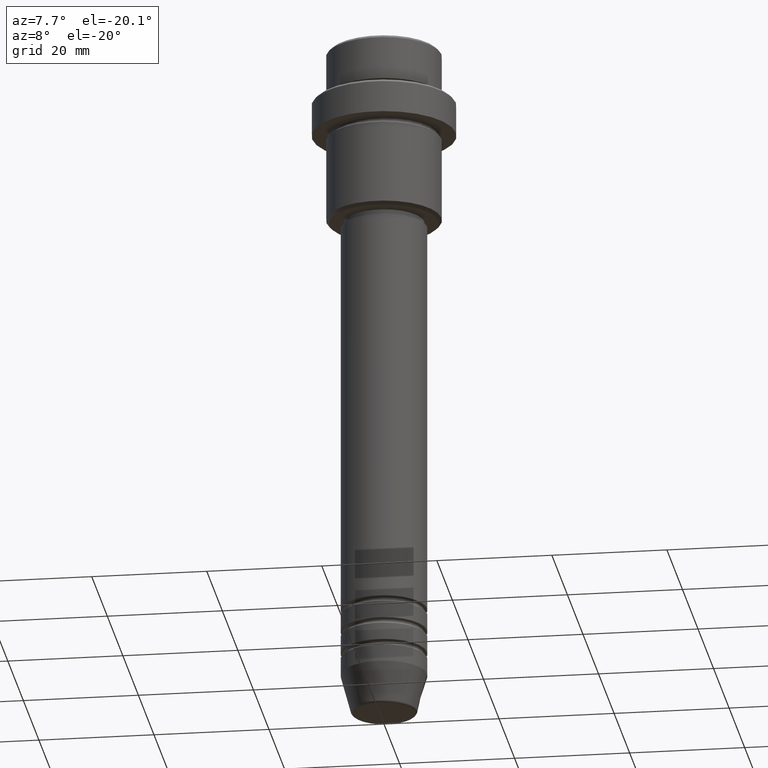
[diagram: clean part render]
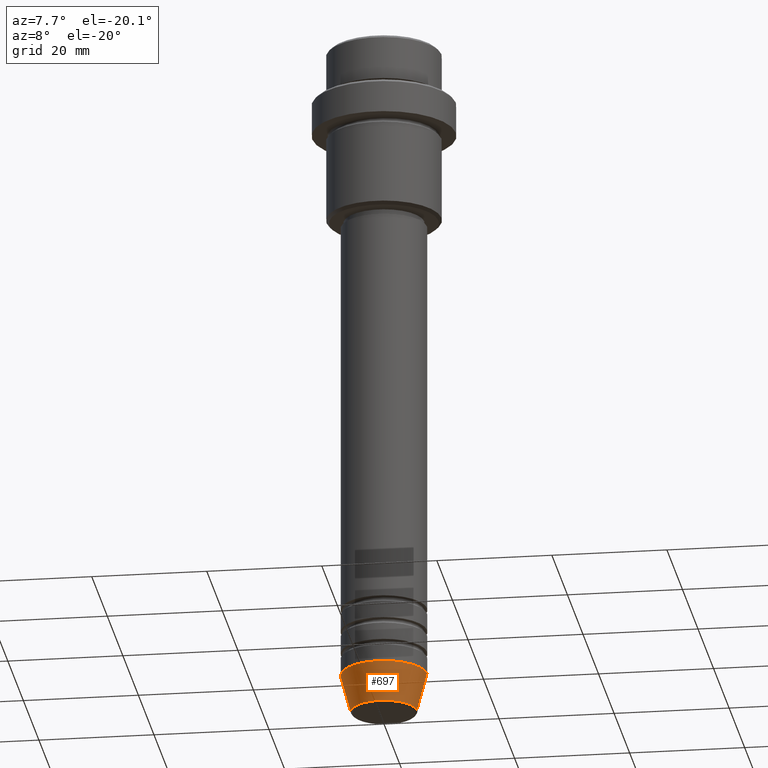
[diagram: same view with one face highlighted and labeled with its STEP entity id]
A machine part, auxiliary view. The second image highlights one B-rep face of the part: STEP entity #697.
In plain terms, the highlighted conical surface has half-angle 15 deg.
Its self-contained STEP definition (entity closure, byte-faithful):
#49 = CARTESIAN_POINT ( 'NONE',  ( 7.500000000000000000, 0.000000000000000000, -113.9999999999999858 ) ) ;
#51 = AXIS2_PLACEMENT_3D ( 'NONE', #276, #53, #256 ) ;
#53 = DIRECTION ( 'NONE',  ( -0.000000000000000000, -0.000000000000000000, 1.000000000000000000 ) ) ;
#97 = EDGE_CURVE ( 'NONE', #98, #1124, #1049, .T. ) ;
#98 = VERTEX_POINT ( 'NONE', #1021 ) ;
#161 = DIRECTION ( 'NONE',  ( 0.2588190451025213501, 0.000000000000000000, 0.9659258262890680902 ) ) ;
#164 = LINE ( 'NONE', #373, #482 ) ;
#178 = EDGE_CURVE ( 'NONE', #98, #422, #164, .T. ) ;
#208 = EDGE_CURVE ( 'NONE', #422, #628, #643, .T. ) ;
#256 = DIRECTION ( 'NONE',  ( 1.000000000000000000, 0.000000000000000000, 0.000000000000000000 ) ) ;
#276 = CARTESIAN_POINT ( 'NONE',  ( 0.000000000000000000, 0.000000000000000000, -120.6294095225512564 ) ) ;
#373 = CARTESIAN_POINT ( 'NONE',  ( -7.500000000000000000, 9.184850993605147944E-16, -113.9999999999999858 ) ) ;
#387 = CARTESIAN_POINT ( 'NONE',  ( 7.500000000000000000, 0.000000000000000000, -113.9999999999999858 ) ) ;
#422 = VERTEX_POINT ( 'NONE', #770 ) ;
#423 = ORIENTED_EDGE ( 'NONE', *, *, #208, .F. ) ;
#462 = CONICAL_SURFACE ( 'NONE', #799, 7.500000000000000000, 0.2617993877991500740 ) ;
#465 = DIRECTION ( 'NONE',  ( -0.000000000000000000, -0.000000000000000000, 1.000000000000000000 ) ) ;
#481 = CARTESIAN_POINT ( 'NONE',  ( 5.723655072137191269, 0.000000000000000000, -120.6294095225512564 ) ) ;
#482 = VECTOR ( 'NONE', #601, 1000.000000000000000 ) ;
#540 = ORIENTED_EDGE ( 'NONE', *, *, #178, .F. ) ;
#595 = AXIS2_PLACEMENT_3D ( 'NONE', #1131, #465, #900 ) ;
#601 = DIRECTION ( 'NONE',  ( -0.2588190451025213501, 3.169619151431772337E-17, 0.9659258262890680902 ) ) ;
#628 = VERTEX_POINT ( 'NONE', #49 ) ;
#643 = CIRCLE ( 'NONE', #595, 7.500000000000000000 ) ;
#697 = ADVANCED_FACE ( 'NONE', ( #1363 ), #462, .T. ) ;
#725 = DIRECTION ( 'NONE',  ( 1.000000000000000000, 0.000000000000000000, 0.000000000000000000 ) ) ;
#770 = CARTESIAN_POINT ( 'NONE',  ( -7.500000000000000000, 9.184850993605147944E-16, -113.9999999999999858 ) ) ;
#778 = VECTOR ( 'NONE', #161, 1000.000000000000000 ) ;
#799 = AXIS2_PLACEMENT_3D ( 'NONE', #1256, #1238, #725 ) ;
#864 = EDGE_LOOP ( 'NONE', ( #540, #1082, #1233, #423 ) ) ;
#900 = DIRECTION ( 'NONE',  ( 1.000000000000000000, 0.000000000000000000, 0.000000000000000000 ) ) ;
#1021 = CARTESIAN_POINT ( 'NONE',  ( -5.723655072137190380, 8.097153428560735915E-16, -120.6294095225512564 ) ) ;
#1049 = CIRCLE ( 'NONE', #51, 5.723655072137191269 ) ;
#1082 = ORIENTED_EDGE ( 'NONE', *, *, #97, .T. ) ;
#1124 = VERTEX_POINT ( 'NONE', #481 ) ;
#1131 = CARTESIAN_POINT ( 'NONE',  ( 0.000000000000000000, 0.000000000000000000, -113.9999999999999858 ) ) ;
#1145 = EDGE_CURVE ( 'NONE', #1124, #628, #1153, .T. ) ;
#1153 = LINE ( 'NONE', #387, #778 ) ;
#1233 = ORIENTED_EDGE ( 'NONE', *, *, #1145, .T. ) ;
#1238 = DIRECTION ( 'NONE',  ( -0.000000000000000000, -0.000000000000000000, 1.000000000000000000 ) ) ;
#1256 = CARTESIAN_POINT ( 'NONE',  ( 0.000000000000000000, 0.000000000000000000, -113.9999999999999858 ) ) ;
#1363 = FACE_OUTER_BOUND ( 'NONE', #864, .T. ) ;